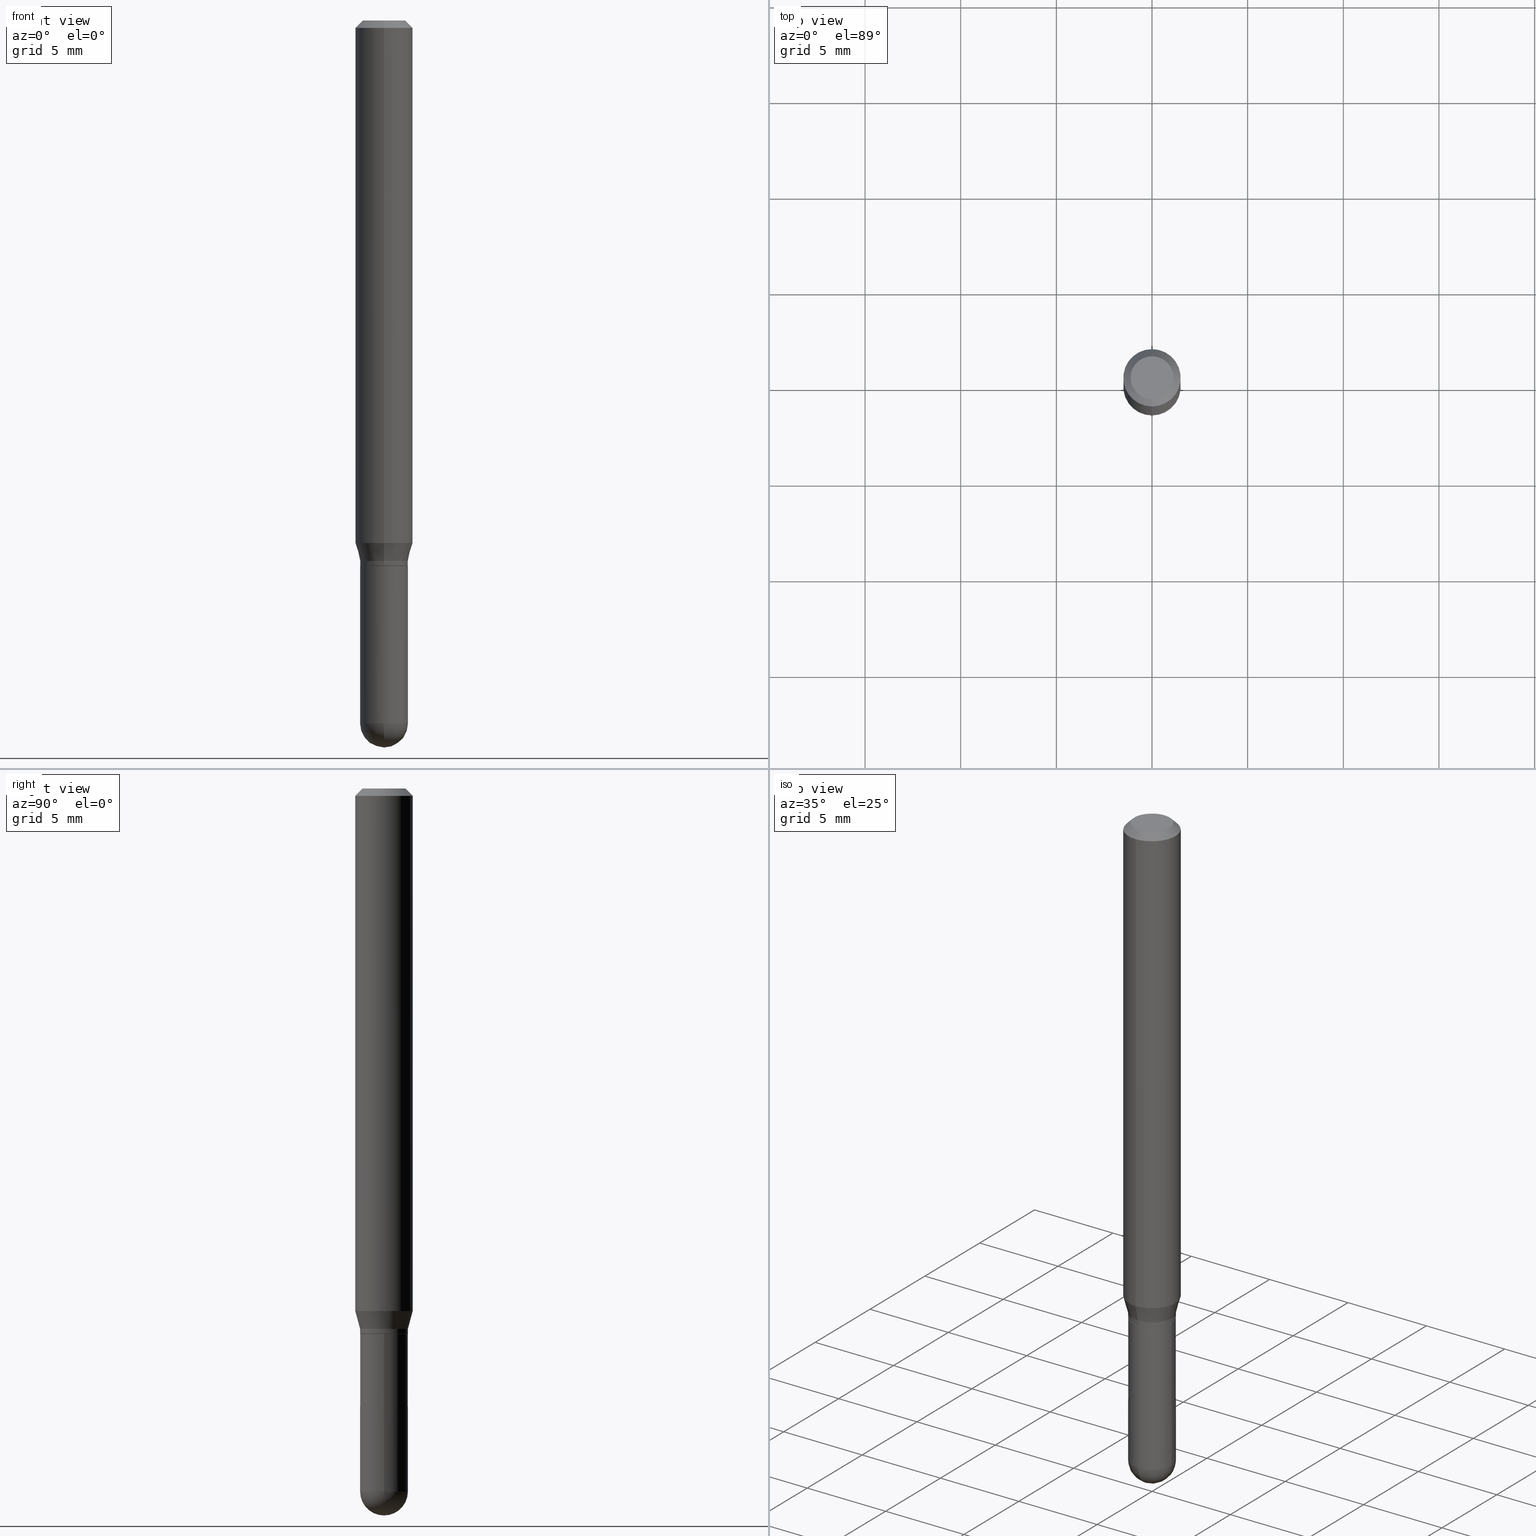
[diagram: canonical four-view strip — front | top / right | iso, engineering-drawing reading convention]
A machine part, canonical four-view strip (front | top / right | iso — engineering-drawing reading convention). The complete STEP part file that produces these views, byte-faithful:
ISO-10303-21;
HEADER;
FILE_DESCRIPTION (( 'STEP AP203' ),
    '1' );
FILE_NAME ('48823.STEP',
    '2024-03-08T13:24:16',
    ( '' ),
    ( '' ),
    'SwSTEP 2.0',
    'SolidWorks 2023',
    '' );
FILE_SCHEMA (( 'CONFIG_CONTROL_DESIGN' ));
ENDSEC;

DATA;
#1 = CARTESIAN_POINT ( 'NONE',  ( -3.435617637421375549E-16, -0.04920000000000401136, -1.121599999999999708 ) ) ;
#2 = EDGE_CURVE ( 'NONE', #77, #115, #340, .T. ) ;
#3 = AXIS2_PLACEMENT_3D ( 'NONE', #360, #393, #112 ) ;
#4 = DIMENSIONAL_EXPONENTS ( 1.000000000000000000, 0.000000000000000000, 0.000000000000000000, 0.000000000000000000, 0.000000000000000000, 0.000000000000000000, 0.000000000000000000 ) ;
#5 = AXIS2_PLACEMENT_3D ( 'NONE', #15, #334, #19 ) ;
#6 = AXIS2_PLACEMENT_3D ( 'NONE', #105, #38, #509 ) ;
#7 = EDGE_CURVE ( 'NONE', #133, #28, #425, .T. ) ;
#8 = PERSON_AND_ORGANIZATION_ROLE ( 'classification_officer' ) ;
#9 = ADVANCED_FACE ( 'NONE', ( #453 ), #390, .T. ) ;
#10 = ADVANCED_BREP_SHAPE_REPRESENTATION ( '48823', ( #212, #200, #176 ), #151 ) ;
#11 = EDGE_LOOP ( 'NONE', ( #271, #44 ) ) ;
#12 = DIRECTION ( 'NONE',  ( -2.445468806185136597E-29, 3.491481338843145583E-15, 1.000000000000000000 ) ) ;
#13 = COORDINATED_UNIVERSAL_TIME_OFFSET ( 5, 0, .BEHIND. ) ;
#14 = EDGE_CURVE ( 'NONE', #438, #177, #209, .T. ) ;
#15 = CARTESIAN_POINT ( 'NONE',  ( 0.000000000000000000, 0.000000000000000000, 0.000000000000000000 ) ) ;
#16 = CIRCLE ( 'NONE', #159, 0.05904999999999999832 ) ;
#17 = VECTOR ( 'NONE', #59, 39.37007874015748143 ) ;
#18 = CYLINDRICAL_SURFACE ( 'NONE', #491, 0.05905000000000000526 ) ;
#19 = DIRECTION ( 'NONE',  ( -6.982962677686265922E-15, -1.000000000000000000, 3.492283521223846478E-15 ) ) ;
#20 = EDGE_CURVE ( 'NONE', #327, #224, #303, .T. ) ;
#21 = DIRECTION ( 'NONE',  ( -2.444908645222623477E-29, 3.492283521223846478E-15, 1.000000000000000000 ) ) ;
#22 = DIRECTION ( 'NONE',  ( 1.000000000000000000, -7.105427357601001070E-15, 4.926315508542082329E-29 ) ) ;
#23 = APPLICATION_PROTOCOL_DEFINITION ( 'international standard', 'config_control_design', 1994, #286 ) ;
#24 = CIRCLE ( 'NONE', #394, 0.04920000000000000068 ) ;
#25 = DIRECTION ( 'NONE',  ( -6.982962677686265922E-15, -1.000000000000000000, 3.505890868245044514E-15 ) ) ;
#26 = EDGE_CURVE ( 'NONE', #361, #177, #175, .T. ) ;
#27 = ORIENTED_EDGE ( 'NONE', *, *, #301, .F. ) ;
#28 = VERTEX_POINT ( 'NONE', #111 ) ;
#29 = VERTEX_POINT ( 'NONE', #145 ) ;
#30 = CALENDAR_DATE ( 2024, 8, 3 ) ;
#31 = ORIENTED_EDGE ( 'NONE', *, *, #99, .T. ) ;
#32 = DIRECTION ( 'NONE',  ( -1.807323732225326984E-15, -0.2588190451025177419, 0.9659258262890690894 ) ) ;
#33 = DIRECTION ( 'NONE',  ( 6.982962677686265922E-15, 1.000000000000000000, -3.505890868245044514E-15 ) ) ;
#34 = CONICAL_SURFACE ( 'NONE', #85, 0.04920000000000020191, 0.2617993877991497964 ) ;
#35 = CARTESIAN_POINT ( 'NONE',  ( 4.195754854663652789E-16, 0.05904999999999623744, -1.075339299545447380 ) ) ;
#36 = PERSON_AND_ORGANIZATION_ROLE ( 'creator' ) ;
#37 = DIRECTION ( 'NONE',  ( -6.982962677686265922E-15, -1.000000000000000000, 4.626330217890369336E-15 ) ) ;
#38 = DIRECTION ( 'NONE',  ( -2.444908645222623477E-29, 3.492283521223846478E-15, 1.000000000000000000 ) ) ;
#39 = CARTESIAN_POINT ( 'NONE',  ( 0.000000000000000000, 0.000000000000000000, 0.000000000000000000 ) ) ;
#40 = CYLINDRICAL_SURFACE ( 'NONE', #307, 0.04920000000000013946 ) ;
#41 = SECURITY_CLASSIFICATION ( '', '', #400 ) ;
#42 = DIRECTION ( 'NONE',  ( -2.445468806185136597E-29, 3.491481338843145583E-15, 1.000000000000000000 ) ) ;
#43 = CC_DESIGN_PERSON_AND_ORGANIZATION_ASSIGNMENT ( #192, #8, ( #41 ) ) ;
#44 = ORIENTED_EDGE ( 'NONE', *, *, #323, .T. ) ;
#45 = DIRECTION ( 'NONE',  ( -6.982962677686265922E-15, -1.000000000000000000, 5.552536572488332275E-15 ) ) ;
#46 = LOCAL_TIME ( 8, 24, 16.00000000000000000, #184 ) ;
#47 = ORIENTED_EDGE ( 'NONE', *, *, #2, .T. ) ;
#48 = AXIS2_PLACEMENT_3D ( 'NONE', #132, #293, #355 ) ;
#49 = DIRECTION ( 'NONE',  ( -6.982962677686266711E-15, -1.000000000000000000, 2.804772067417108113E-15 ) ) ;
#50 = FACE_OUTER_BOUND ( 'NONE', #345, .T. ) ;
#51 = CYLINDRICAL_SURFACE ( 'NONE', #199, 0.04920000000000013946 ) ;
#52 = SPHERICAL_SURFACE ( 'NONE', #396, 0.04920000000000007007 ) ;
#53 = AXIS2_PLACEMENT_3D ( 'NONE', #241, #447, #168 ) ;
#54 = DIRECTION ( 'NONE',  ( 6.982962677686265922E-15, 1.000000000000000000, -3.505890868245044514E-15 ) ) ;
#55 = CARTESIAN_POINT ( 'NONE',  ( 3.538348815669273817E-29, -5.051824349172146609E-15, -1.446899999999999853 ) ) ;
#56 = CARTESIAN_POINT ( 'NONE',  ( -4.123439461173478031E-16, -0.05905000000000376614, -1.075339299545447158 ) ) ;
#57 = CARTESIAN_POINT ( 'NONE',  ( -3.536586717851222711E-16, -0.04405000000000000582, 3.540390976085822120E-16 ) ) ;
#58 = ORIENTED_EDGE ( 'NONE', *, *, #225, .T. ) ;
#59 = DIRECTION ( 'NONE',  ( 1.839019923739597160E-15, 0.2588190451025245142, 0.9659258262890673130 ) ) ;
#60 = APPLICATION_PROTOCOL_DEFINITION ( 'international standard', 'config_control_design', 1994, #88 ) ;
#61 = AXIS2_PLACEMENT_3D ( 'NONE', #304, #65, #72 ) ;
#62 = PLANE ( 'NONE',  #485 ) ;
#63 = AXIS2_PLACEMENT_3D ( 'NONE', #382, #22, #249 ) ;
#64 = ORIENTED_EDGE ( 'NONE', *, *, #20, .F. ) ;
#65 = DIRECTION ( 'NONE',  ( -2.444908645222623477E-29, 3.492283521223846478E-15, 1.000000000000000000 ) ) ;
#66 = ORIENTED_EDGE ( 'NONE', *, *, #156, .F. ) ;
#67 = ORIENTED_EDGE ( 'NONE', *, *, #14, .T. ) ;
#68 = DIRECTION ( 'NONE',  ( -2.444908645222623477E-29, 3.492283521223846478E-15, 1.000000000000000000 ) ) ;
#69 = ORIENTED_EDGE ( 'NONE', *, *, #257, .T. ) ;
#70 = LOCAL_TIME ( 8, 24, 16.00000000000000000, #507 ) ;
#71 = CIRCLE ( 'NONE', #131, 0.04920000000000000068 ) ;
#72 = DIRECTION ( 'NONE',  ( -6.982962677686265133E-15, -1.000000000000000000, 3.492283521223846084E-15 ) ) ;
#73 = EDGE_CURVE ( 'NONE', #115, #28, #147, .T. ) ;
#74 = ORIENTED_EDGE ( 'NONE', *, *, #280, .T. ) ;
#75 = CARTESIAN_POINT ( 'NONE',  ( 2.742209536481694084E-29, -3.916945197404665719E-15, -1.121599999999999930 ) ) ;
#76 = DIRECTION ( 'NONE',  ( -6.982962677686265922E-15, -1.000000000000000000, 0.000000000000000000 ) ) ;
#77 = VERTEX_POINT ( 'NONE', #312 ) ;
#78 = FACE_OUTER_BOUND ( 'NONE', #217, .T. ) ;
#79 = EDGE_CURVE ( 'NONE', #361, #237, #281, .T. ) ;
#80 = EDGE_CURVE ( 'NONE', #28, #371, #142, .T. ) ;
#81 = ORIENTED_EDGE ( 'NONE', *, *, #455, .T. ) ;
#82 = VERTEX_POINT ( 'NONE', #381 ) ;
#83 = AXIS2_PLACEMENT_3D ( 'NONE', #114, #411, #76 ) ;
#84 = ORIENTED_EDGE ( 'NONE', *, *, #323, .F. ) ;
#85 = AXIS2_PLACEMENT_3D ( 'NONE', #185, #467, #266 ) ;
#86 = AXIS2_PLACEMENT_3D ( 'NONE', #395, #188, #316 ) ;
#87 = LINE ( 'NONE', #169, #512 ) ;
#88 = APPLICATION_CONTEXT ( 'configuration controlled 3d designs of mechanical parts and assemblies' ) ;
#89 = FACE_OUTER_BOUND ( 'NONE', #482, .T. ) ;
#90 = FACE_OUTER_BOUND ( 'NONE', #465, .T. ) ;
#91 = CARTESIAN_POINT ( 'NONE',  ( -3.400702824032937589E-16, -0.04870000000000392071, -1.122099999999999653 ) ) ;
#92 = FACE_OUTER_BOUND ( 'NONE', #288, .T. ) ;
#93 = PERSON_AND_ORGANIZATION ( #121, #484 ) ;
#94 = CARTESIAN_POINT ( 'NONE',  ( 0.000000000000000000, 0.000000000000000000, 0.000000000000000000 ) ) ;
#95 = DIRECTION ( 'NONE',  ( 2.438088387897960049E-29, -3.491481338843145188E-15, -1.000000000000000000 ) ) ;
#96 = ADVANCED_FACE ( 'NONE', ( #97 ), #34, .T. ) ;
#97 = FACE_OUTER_BOUND ( 'NONE', #103, .T. ) ;
#98 = DATE_AND_TIME ( #305, #299 ) ;
#99 = EDGE_CURVE ( 'NONE', #82, #285, #331, .T. ) ;
#100 = CC_DESIGN_APPROVAL ( #470, ( #41 ) ) ;
#101 = ORIENTED_EDGE ( 'NONE', *, *, #14, .F. ) ;
#102 = DIRECTION ( 'NONE',  ( 2.444908645222623477E-29, -3.492283521223846478E-15, -1.000000000000000000 ) ) ;
#103 = EDGE_LOOP ( 'NONE', ( #385, #279, #179, #235 ) ) ;
#104 = CONICAL_SURFACE ( 'NONE', #6, 0.04920000000000020191, 0.2617993877991497964 ) ;
#105 = CARTESIAN_POINT ( 'NONE',  ( 2.718982904352079591E-29, -3.883768503953039456E-15, -1.112099999999999866 ) ) ;
#106 = ORIENTED_EDGE ( 'NONE', *, *, #401, .F. ) ;
#107 = CARTESIAN_POINT ( 'NONE',  ( -4.123439461173740327E-16, -0.05905000000000000526, 2.062193419282681496E-16 ) ) ;
#108 = DIRECTION ( 'NONE',  ( -1.000000000000000000, 6.982962677686265922E-15, -4.876176775795935793E-29 ) ) ;
#109 = DIRECTION ( 'NONE',  ( -6.982962677686265922E-15, -1.000000000000000000, 3.492283521223846478E-15 ) ) ;
#110 = APPROVAL_ROLE ( '' ) ;
#111 = CARTESIAN_POINT ( 'NONE',  ( -3.435617637421385410E-16, -0.04920000000000408769, -1.112099999999999644 ) ) ;
#112 = DIRECTION ( 'NONE',  ( -6.982962677686266711E-15, -1.000000000000000000, 2.804772067417108113E-15 ) ) ;
#113 = ADVANCED_FACE ( 'NONE', ( #423 ), #62, .F. ) ;
#114 = CARTESIAN_POINT ( 'NONE',  ( 3.534141397526511158E-29, -5.057849611423951529E-15, -1.446899999999999853 ) ) ;
#115 = VERTEX_POINT ( 'NONE', #1 ) ;
#116 = CALENDAR_DATE ( 2024, 8, 3 ) ;
#117 = ORIENTED_EDGE ( 'NONE', *, *, #419, .F. ) ;
#118 = CONICAL_SURFACE ( 'NONE', #3, 0.04870000000000000023, 0.7853981633974739252 ) ;
#119 = CIRCLE ( 'NONE', #63, 0.04920000000000007007 ) ;
#120 = DIRECTION ( 'NONE',  ( -6.982962677686265133E-15, -1.000000000000000000, 3.492283521223846478E-15 ) ) ;
#121 = PERSON ( 'UNSPECIFIED', 'UNSPECIFIED', 'UNSPECIFIED', ('UNSPECIFIED'), ('UNSPECIFIED'), ('UNSPECIFIED') ) ;
#122 = DIRECTION ( 'NONE',  ( -6.982962677686265133E-15, -1.000000000000000000, 3.492283521223846478E-15 ) ) ;
#123 = EDGE_LOOP ( 'NONE', ( #362, #442 ) ) ;
#124 = EDGE_CURVE ( 'NONE', #28, #133, #153, .T. ) ;
#125 = ORIENTED_EDGE ( 'NONE', *, *, #280, .F. ) ;
#126 = ORIENTED_EDGE ( 'NONE', *, *, #213, .T. ) ;
#127 = ADVANCED_FACE ( 'NONE', ( #275 ), #104, .T. ) ;
#128 = ORIENTED_EDGE ( 'NONE', *, *, #227, .T. ) ;
#129 = EDGE_CURVE ( 'NONE', #77, #133, #479, .T. ) ;
#130 = FACE_OUTER_BOUND ( 'NONE', #11, .T. ) ;
#131 = AXIS2_PLACEMENT_3D ( 'NONE', #487, #302, #294 ) ;
#132 = CARTESIAN_POINT ( 'NONE',  ( 2.718982904352079591E-29, -3.883768503953039456E-15, -1.112099999999999866 ) ) ;
#133 = VERTEX_POINT ( 'NONE', #414 ) ;
#134 = CARTESIAN_POINT ( 'NONE',  ( 3.495870259940048443E-16, 0.04919999999999498386, -1.446900000000000075 ) ) ;
#135 = CARTESIAN_POINT ( 'NONE',  ( 3.667362967833886328E-31, -5.238425281835698892E-17, -0.01499999999999979995 ) ) ;
#136 = PRODUCT_RELATED_PRODUCT_CATEGORY ( 'detail', '', ( #364 ) ) ;
#137 = APPROVAL_PERSON_ORGANIZATION ( #171, #470, #160 ) ;
#138 = CARTESIAN_POINT ( 'NONE',  ( -0.04920000000000000068, -4.135220753750050718E-15, -1.122099999999999875 ) ) ;
#139 = AXIS2_PLACEMENT_3D ( 'NONE', #135, #244, #448 ) ;
#140 = CARTESIAN_POINT ( 'NONE',  ( 2.718982904352079591E-29, -3.883768503953039456E-15, -1.112099999999999866 ) ) ;
#141 = LOCAL_TIME ( 8, 24, 16.00000000000000000, #384 ) ;
#142 = LINE ( 'NONE', #460, #219 ) ;
#143 = CARTESIAN_POINT ( 'NONE',  ( -4.894805111866261893E-45, 6.991691597628703667E-31, 2.002040084986717477E-16 ) ) ;
#144 = PERSON_AND_ORGANIZATION ( #121, #484 ) ;
#145 = CARTESIAN_POINT ( 'NONE',  ( 0.04920000000000000068, -4.261352974058057450E-15, -1.122099999999999875 ) ) ;
#146 = CIRCLE ( 'NONE', #161, 0.04920000000000000068 ) ;
#147 = LINE ( 'NONE', #310, #376 ) ;
#148 = FACE_OUTER_BOUND ( 'NONE', #475, .T. ) ;
#149 = CARTESIAN_POINT ( 'NONE',  ( 3.538348815669273817E-29, -5.051824349172146609E-15, -1.446899999999999853 ) ) ;
#150 = PERSON_AND_ORGANIZATION_ROLE ( 'creator' ) ;
#151 =( GEOMETRIC_REPRESENTATION_CONTEXT ( 3 ) GLOBAL_UNCERTAINTY_ASSIGNED_CONTEXT ( ( #468 ) ) GLOBAL_UNIT_ASSIGNED_CONTEXT ( ( #287, #240, #489 ) ) REPRESENTATION_CONTEXT ( 'NONE', 'WORKASPACE' ) );
#152 = DIRECTION ( 'NONE',  ( -2.444908645222623477E-29, 3.492283521223846478E-15, 1.000000000000000000 ) ) ;
#153 = CIRCLE ( 'NONE', #48, 0.04920000000000020191 ) ;
#154 = DIRECTION ( 'NONE',  ( -2.444908645222623477E-29, 3.492283521223846478E-15, 1.000000000000000000 ) ) ;
#155 = FACE_OUTER_BOUND ( 'NONE', #433, .T. ) ;
#156 = EDGE_CURVE ( 'NONE', #133, #427, #457, .T. ) ;
#157 = ORIENTED_EDGE ( 'NONE', *, *, #297, .T. ) ;
#158 = ORIENTED_EDGE ( 'NONE', *, *, #242, .T. ) ;
#159 = AXIS2_PLACEMENT_3D ( 'NONE', #232, #459, #37 ) ;
#160 = APPROVAL_ROLE ( '' ) ;
#161 = AXIS2_PLACEMENT_3D ( 'NONE', #372, #12, #164 ) ;
#162 = ADVANCED_FACE ( 'NONE', ( #130 ), #243, .F. ) ;
#163 = VERTEX_POINT ( 'NONE', #336 ) ;
#164 = DIRECTION ( 'NONE',  ( 1.000000000000000000, -6.982962677686261977E-15, 0.000000000000000000 ) ) ;
#165 = CARTESIAN_POINT ( 'NONE',  ( 3.495870259939978432E-16, 0.04919999999999632306, -1.112100000000000088 ) ) ;
#166 = AXIS2_PLACEMENT_3D ( 'NONE', #143, #261, #392 ) ;
#167 = SPHERICAL_SURFACE ( 'NONE', #407, 0.04920000000000007007 ) ;
#168 = DIRECTION ( 'NONE',  ( 6.982962677686265922E-15, 1.000000000000000000, -3.492283521223846084E-15 ) ) ;
#169 = CARTESIAN_POINT ( 'NONE',  ( 0.04920000000000000068, -3.435617637421643269E-16, 2.399078973691600472E-30 ) ) ;
#170 = DIRECTION ( 'NONE',  ( 1.000000000000000000, -6.982962677686261977E-15, 0.000000000000000000 ) ) ;
#171 = PERSON_AND_ORGANIZATION ( #121, #484 ) ;
#172 = DIRECTION ( 'NONE',  ( 1.000000000000000000, -6.982962677686265922E-15, 4.883557194083112340E-29 ) ) ;
#173 = DIRECTION ( 'NONE',  ( 0.000000000000000000, 0.000000000000000000, 1.000000000000000000 ) ) ;
#174 = AXIS2_PLACEMENT_3D ( 'NONE', #140, #300, #387 ) ;
#175 = LINE ( 'NONE', #349, #320 ) ;
#176 = AXIS2_PLACEMENT_3D ( 'NONE', #337, #173, #461 ) ;
#177 = VERTEX_POINT ( 'NONE', #292 ) ;
#178 = EDGE_LOOP ( 'NONE', ( #201, #231, #443, #27 ) ) ;
#179 = ORIENTED_EDGE ( 'NONE', *, *, #478, .F. ) ;
#180 = ORIENTED_EDGE ( 'NONE', *, *, #227, .F. ) ;
#181 = DATE_AND_TIME ( #30, #46 ) ;
#182 = ORIENTED_EDGE ( 'NONE', *, *, #406, .T. ) ;
#183 = DIRECTION ( 'NONE',  ( -6.982962677686265133E-15, -1.000000000000000000, 2.776268286244166532E-15 ) ) ;
#184 = COORDINATED_UNIVERSAL_TIME_OFFSET ( 5, 0, .BEHIND. ) ;
#185 = CARTESIAN_POINT ( 'NONE',  ( 2.718982904352079591E-29, -3.883768503953039456E-15, -1.112099999999999866 ) ) ;
#186 = DIRECTION ( 'NONE',  ( -2.445468806185136597E-29, 3.491481338843145583E-15, 1.000000000000000000 ) ) ;
#187 = AXIS2_PLACEMENT_3D ( 'NONE', #500, #21, #25 ) ;
#188 = DIRECTION ( 'NONE',  ( -2.444908645222623477E-29, 3.492283521223846478E-15, 1.000000000000000000 ) ) ;
#189 = DATE_AND_TIME ( #116, #70 ) ;
#190 = CARTESIAN_POINT ( 'NONE',  ( 2.629106350006304297E-29, -3.755389715526958811E-15, -1.075339299545447158 ) ) ;
#191 = APPROVAL_STATUS ( 'not_yet_approved' ) ;
#192 = PERSON_AND_ORGANIZATION ( #121, #484 ) ;
#193 = CLOSED_SHELL ( 'NONE', ( #432, #510, #113, #196, #9 ) ) ;
#194 = ORIENTED_EDGE ( 'NONE', *, *, #129, .T. ) ;
#195 = EDGE_LOOP ( 'NONE', ( #335, #128, #260, #471 ) ) ;
#196 = ADVANCED_FACE ( 'NONE', ( #92 ), #52, .T. ) ;
#197 = CONICAL_SURFACE ( 'NONE', #86, 0.04870000000000000023, 0.7853981633974739252 ) ;
#198 = CIRCLE ( 'NONE', #61, 0.04405000000000000582 ) ;
#199 = AXIS2_PLACEMENT_3D ( 'NONE', #39, #154, #122 ) ;
#200 = MANIFOLD_SOLID_BREP ( 'Body-Move/Copy2[2]', #245 ) ;
#201 = ORIENTED_EDGE ( 'NONE', *, *, #455, .F. ) ;
#202 = DIRECTION ( 'NONE',  ( -2.444908645222623477E-29, 3.492283521223846084E-15, 1.000000000000000000 ) ) ;
#203 = ADVANCED_FACE ( 'NONE', ( #488 ), #374, .T. ) ;
#204 = ORIENTED_EDGE ( 'NONE', *, *, #439, .F. ) ;
#205 = CARTESIAN_POINT ( 'NONE',  ( 3.667362967833886328E-31, -5.238425281835698892E-17, -0.01499999999999979995 ) ) ;
#206 = PERSON_AND_ORGANIZATION ( #121, #484 ) ;
#207 = CC_DESIGN_DATE_AND_TIME_ASSIGNMENT ( #248, #215, ( #41 ) ) ;
#208 = LINE ( 'NONE', #492, #441 ) ;
#209 = CIRCLE ( 'NONE', #187, 0.05905000000000001914 ) ;
#210 = CARTESIAN_POINT ( 'NONE',  ( 3.534141397526511158E-29, -5.057849611423951529E-15, -1.446899999999999853 ) ) ;
#211 = DIRECTION ( 'NONE',  ( -2.445468806185136597E-29, 3.491481338843145583E-15, 1.000000000000000000 ) ) ;
#212 = MANIFOLD_SOLID_BREP ( 'Body-Move/Copy2[1]', #193 ) ;
#213 = EDGE_CURVE ( 'NONE', #163, #82, #146, .T. ) ;
#214 = ORIENTED_EDGE ( 'NONE', *, *, #225, .F. ) ;
#215 = DATE_TIME_ROLE ( 'classification_date' ) ;
#216 = SHAPE_DEFINITION_REPRESENTATION ( #373, #10 ) ;
#217 = EDGE_LOOP ( 'NONE', ( #182, #194, #326, #220 ) ) ;
#218 = PERSON_AND_ORGANIZATION_ROLE ( 'design_owner' ) ;
#219 = VECTOR ( 'NONE', #32, 39.37007874015748143 ) ;
#220 = ORIENTED_EDGE ( 'NONE', *, *, #73, .F. ) ;
#221 = ORIENTED_EDGE ( 'NONE', *, *, #474, .F. ) ;
#222 = ORIENTED_EDGE ( 'NONE', *, *, #409, .F. ) ;
#223 = DIRECTION ( 'NONE',  ( -2.445468806185136597E-29, 3.491481338843145583E-15, 1.000000000000000000 ) ) ;
#224 = VERTEX_POINT ( 'NONE', #138 ) ;
#225 = EDGE_CURVE ( 'NONE', #82, #29, #87, .T. ) ;
#226 = PRODUCT_DEFINITION_FORMATION_WITH_SPECIFIED_SOURCE ( 'ANY', '', #364, .NOT_KNOWN. ) ;
#227 = EDGE_CURVE ( 'NONE', #309, #282, #451, .T. ) ;
#228 = DIRECTION ( 'NONE',  ( -2.444908645222623477E-29, 3.492283521223846084E-15, 1.000000000000000000 ) ) ;
#229 = CARTESIAN_POINT ( 'NONE',  ( 2.743431990804305521E-29, -3.918691339165277420E-15, -1.122099999999999875 ) ) ;
#230 = PERSON_AND_ORGANIZATION_ROLE ( 'design_supplier' ) ;
#231 = ORIENTED_EDGE ( 'NONE', *, *, #401, .T. ) ;
#232 = CARTESIAN_POINT ( 'NONE',  ( 2.629106350006304297E-29, -3.755389715526958811E-15, -1.075339299545447158 ) ) ;
#233 = AXIS2_PLACEMENT_3D ( 'NONE', #149, #436, #357 ) ;
#234 = AXIS2_PLACEMENT_3D ( 'NONE', #247, #383, #250 ) ;
#235 = ORIENTED_EDGE ( 'NONE', *, *, #80, .F. ) ;
#236 = DIRECTION ( 'NONE',  ( 1.000000000000000000, -6.982962677686265922E-15, 4.883557194083112340E-29 ) ) ;
#237 = VERTEX_POINT ( 'NONE', #57 ) ;
#238 = CC_DESIGN_PERSON_AND_ORGANIZATION_ASSIGNMENT ( #508, #150, ( #226 ) ) ;
#239 = CIRCLE ( 'NONE', #370, 0.04920000000000006313 ) ;
#240 =( NAMED_UNIT ( * ) PLANE_ANGLE_UNIT ( ) SI_UNIT ( $, .RADIAN. ) );
#241 = CARTESIAN_POINT ( 'NONE',  ( 3.075995059520800222E-16, 0.04405000000000000582, -5.373308486057459653E-17 ) ) ;
#242 = EDGE_CURVE ( 'NONE', #440, #285, #119, .T. ) ;
#243 = PLANE ( 'NONE',  #53 ) ;
#244 = DIRECTION ( 'NONE',  ( -2.444908645222623477E-29, 3.492283521223846478E-15, 1.000000000000000000 ) ) ;
#245 = CLOSED_SHELL ( 'NONE', ( #388, #328, #503, #315, #96, #127, #203, #263, #162, #377, #495, #481 ) ) ;
#246 = DIRECTION ( 'NONE',  ( -2.444908645222623477E-29, 3.492283521223846478E-15, 1.000000000000000000 ) ) ;
#247 = CARTESIAN_POINT ( 'NONE',  ( 2.742209536481694084E-29, -3.916945197404665719E-15, -1.121599999999999930 ) ) ;
#248 = DATE_AND_TIME ( #252, #141 ) ;
#249 = DIRECTION ( 'NONE',  ( 7.105427357601001070E-15, 1.000000000000000000, 0.000000000000000000 ) ) ;
#250 = DIRECTION ( 'NONE',  ( -6.982962677686265133E-15, -1.000000000000000000, 2.776268286244166532E-15 ) ) ;
#251 = AXIS2_PLACEMENT_3D ( 'NONE', #472, #186, #352 ) ;
#252 = CALENDAR_DATE ( 2024, 8, 3 ) ;
#253 = APPROVAL_DATE_TIME ( #98, #329 ) ;
#254 = ORIENTED_EDGE ( 'NONE', *, *, #129, .F. ) ;
#255 = AXIS2_PLACEMENT_3D ( 'NONE', #55, #211, #170 ) ;
#256 = DIRECTION ( 'NONE',  ( 1.000000000000000000, -6.982962677686266711E-15, 4.876176775795935793E-29 ) ) ;
#257 = EDGE_CURVE ( 'NONE', #309, #77, #333, .T. ) ;
#258 = DESIGN_CONTEXT ( 'detailed design', #286, 'design' ) ;
#259 = CALENDAR_DATE ( 2024, 8, 3 ) ;
#260 = ORIENTED_EDGE ( 'NONE', *, *, #439, .T. ) ;
#261 = DIRECTION ( 'NONE',  ( -2.444908645222623477E-29, 3.492283521223846478E-15, 1.000000000000000000 ) ) ;
#262 = CARTESIAN_POINT ( 'NONE',  ( -4.123439461173737369E-16, -0.05905000000000006771, -0.01499999999999959178 ) ) ;
#263 = ADVANCED_FACE ( 'NONE', ( #50 ), #351, .T. ) ;
#264 = CARTESIAN_POINT ( 'NONE',  ( 2.743431990804305521E-29, -3.918691339165277420E-15, -1.122099999999999875 ) ) ;
#265 = CARTESIAN_POINT ( 'NONE',  ( -0.04920000000000000068, -4.135220753750050718E-15, -1.446899999999999853 ) ) ;
#266 = DIRECTION ( 'NONE',  ( -6.982962677686265922E-15, -1.000000000000000000, 2.776268286244158643E-15 ) ) ;
#267 = DIRECTION ( 'NONE',  ( -2.444908645222623477E-29, 3.492283521223846478E-15, 1.000000000000000000 ) ) ;
#268 = DATE_AND_TIME ( #259, #431 ) ;
#269 = ORIENTED_EDGE ( 'NONE', *, *, #79, .F. ) ;
#270 = CC_DESIGN_APPROVAL ( #329, ( #284 ) ) ;
#271 = ORIENTED_EDGE ( 'NONE', *, *, #79, .T. ) ;
#272 = VECTOR ( 'NONE', #462, 39.37007874015748143 ) ;
#273 = CARTESIAN_POINT ( 'NONE',  ( 3.652354753719438961E-29, -5.232643124420936646E-15, -1.496099999999999985 ) ) ;
#274 = AXIS2_PLACEMENT_3D ( 'NONE', #229, #399, #49 ) ;
#275 = FACE_OUTER_BOUND ( 'NONE', #338, .T. ) ;
#276 = ORIENTED_EDGE ( 'NONE', *, *, #26, .T. ) ;
#277 = CC_DESIGN_DATE_AND_TIME_ASSIGNMENT ( #181, #353, ( #284 ) ) ;
#278 = ORIENTED_EDGE ( 'NONE', *, *, #478, .T. ) ;
#279 = ORIENTED_EDGE ( 'NONE', *, *, #156, .T. ) ;
#280 = EDGE_CURVE ( 'NONE', #237, #438, #208, .T. ) ;
#281 = CIRCLE ( 'NONE', #166, 0.04405000000000000582 ) ;
#282 = VERTEX_POINT ( 'NONE', #91 ) ;
#283 = ORIENTED_EDGE ( 'NONE', *, *, #379, .T. ) ;
#284 = PRODUCT_DEFINITION ( 'UNKNOWN', '', #226, #258 ) ;
#285 = VERTEX_POINT ( 'NONE', #134 ) ;
#286 = APPLICATION_CONTEXT ( 'configuration controlled 3d designs of mechanical parts and assemblies' ) ;
#287 =( CONVERSION_BASED_UNIT ( 'INCH', #444 ) LENGTH_UNIT ( ) NAMED_UNIT ( #4 ) );
#288 = EDGE_LOOP ( 'NONE', ( #454, #283, #222, #504 ) ) ;
#289 = APPROVAL_PERSON_ORGANIZATION ( #144, #449, #110 ) ;
#290 = AXIS2_PLACEMENT_3D ( 'NONE', #452, #246, #418 ) ;
#291 = CARTESIAN_POINT ( 'NONE',  ( 3.599717260347272986E-16, 0.04405000000000000582, 4.636891938876127733E-17 ) ) ;
#292 = CARTESIAN_POINT ( 'NONE',  ( 4.195754854663657226E-16, 0.05904999999999996363, -0.01500000000000000638 ) ) ;
#293 = DIRECTION ( 'NONE',  ( -2.444908645222623477E-29, 3.492283521223846478E-15, 1.000000000000000000 ) ) ;
#294 = DIRECTION ( 'NONE',  ( 1.000000000000000000, -6.982962677686261977E-15, 0.000000000000000000 ) ) ;
#295 = CARTESIAN_POINT ( 'NONE',  ( 0.000000000000000000, 0.000000000000000000, 0.000000000000000000 ) ) ;
#296 = ORIENTED_EDGE ( 'NONE', *, *, #7, .T. ) ;
#297 = EDGE_CURVE ( 'NONE', #285, #327, #71, .T. ) ;
#298 = DIRECTION ( 'NONE',  ( -2.445468806185136877E-29, 3.491481338843145188E-15, 1.000000000000000000 ) ) ;
#299 = LOCAL_TIME ( 8, 24, 16.00000000000000000, #497 ) ;
#300 = DIRECTION ( 'NONE',  ( -2.444908645222623477E-29, 3.492283521223846478E-15, 1.000000000000000000 ) ) ;
#301 = EDGE_CURVE ( 'NONE', #177, #438, #369, .T. ) ;
#302 = DIRECTION ( 'NONE',  ( -2.445468806185136597E-29, 3.491481338843145583E-15, 1.000000000000000000 ) ) ;
#303 = LINE ( 'NONE', #428, #272 ) ;
#304 = CARTESIAN_POINT ( 'NONE',  ( -4.894805111866261893E-45, 6.991691597628703667E-31, 2.002040084986717477E-16 ) ) ;
#305 = CALENDAR_DATE ( 2024, 8, 3 ) ;
#306 = ORIENTED_EDGE ( 'NONE', *, *, #344, .F. ) ;
#307 = AXIS2_PLACEMENT_3D ( 'NONE', #477, #68, #120 ) ;
#308 = APPROVAL_STATUS ( 'not_yet_approved' ) ;
#309 = VERTEX_POINT ( 'NONE', #417 ) ;
#310 = CARTESIAN_POINT ( 'NONE',  ( -3.435617637421652144E-16, -0.04920000000000013946, 1.718203492442137256E-16 ) ) ;
#311 = FACE_OUTER_BOUND ( 'NONE', #348, .T. ) ;
#312 = CARTESIAN_POINT ( 'NONE',  ( 3.495870259939968571E-16, 0.04919999999999610796, -1.121599999999999930 ) ) ;
#313 = LINE ( 'NONE', #430, #463 ) ;
#314 = FACE_OUTER_BOUND ( 'NONE', #343, .T. ) ;
#315 = ADVANCED_FACE ( 'NONE', ( #90 ), #18, .T. ) ;
#316 = DIRECTION ( 'NONE',  ( -6.982962677686266711E-15, -1.000000000000000000, 2.804772067417108113E-15 ) ) ;
#317 = CIRCLE ( 'NONE', #83, 0.04920000000000007007 ) ;
#318 = PERSON_AND_ORGANIZATION ( #121, #484 ) ;
#319 = EDGE_LOOP ( 'NONE', ( #480, #69, #405, #204 ) ) ;
#320 = VECTOR ( 'NONE', #494, 39.37007874015748143 ) ;
#321 = DIRECTION ( 'NONE',  ( -6.982962677686265922E-15, -1.000000000000000000, 4.626330217890369336E-15 ) ) ;
#322 = VECTOR ( 'NONE', #434, 39.37007874015748143 ) ;
#323 = EDGE_CURVE ( 'NONE', #237, #361, #198, .T. ) ;
#324 = CARTESIAN_POINT ( 'NONE',  ( 3.667362967833886328E-31, -5.238425281835698892E-17, -0.01499999999999979995 ) ) ;
#325 = CARTESIAN_POINT ( 'NONE',  ( 3.534141397526511158E-29, -5.057849611423951529E-15, -1.446899999999999853 ) ) ;
#326 = ORIENTED_EDGE ( 'NONE', *, *, #124, .F. ) ;
#327 = VERTEX_POINT ( 'NONE', #265 ) ;
#328 = ADVANCED_FACE ( 'NONE', ( #429 ), #197, .T. ) ;
#329 = APPROVAL ( #493, 'UNSPECIFIED' ) ;
#330 = CIRCLE ( 'NONE', #233, 0.04920000000000000068 ) ;
#331 = CIRCLE ( 'NONE', #255, 0.04920000000000000068 ) ;
#332 = ORIENTED_EDGE ( 'NONE', *, *, #20, .T. ) ;
#333 = LINE ( 'NONE', #341, #359 ) ;
#334 = DIRECTION ( 'NONE',  ( -2.444908645222623477E-29, 3.492283521223846478E-15, 1.000000000000000000 ) ) ;
#335 = ORIENTED_EDGE ( 'NONE', *, *, #257, .F. ) ;
#336 = CARTESIAN_POINT ( 'NONE',  ( -3.435617637421291240E-16, -0.04920000000000508689, -1.446899999999999631 ) ) ;
#337 = CARTESIAN_POINT ( 'NONE',  ( 0.000000000000000000, 0.000000000000000000, 0.000000000000000000 ) ) ;
#338 = EDGE_LOOP ( 'NONE', ( #66, #296, #499, #106 ) ) ;
#339 = CIRCLE ( 'NONE', #274, 0.04870000000000000023 ) ;
#340 = CIRCLE ( 'NONE', #234, 0.04920000000000006313 ) ;
#341 = CARTESIAN_POINT ( 'NONE',  ( 3.460343123151961558E-16, 0.04869999999999607976, -1.122100000000000097 ) ) ;
#342 = CIRCLE ( 'NONE', #368, 0.04920000000000000068 ) ;
#343 = EDGE_LOOP ( 'NONE', ( #157, #332, #221, #214, #31 ) ) ;
#344 = EDGE_CURVE ( 'NONE', #224, #29, #24, .T. ) ;
#345 = EDGE_LOOP ( 'NONE', ( #125, #269, #276, #404 ) ) ;
#346 = ORIENTED_EDGE ( 'NONE', *, *, #213, .F. ) ;
#347 = EDGE_CURVE ( 'NONE', #282, #309, #339, .T. ) ;
#348 = EDGE_LOOP ( 'NONE', ( #254, #47, #496, #483 ) ) ;
#349 = CARTESIAN_POINT ( 'NONE',  ( 4.123439461173744764E-16, 0.05904999999999996363, -0.01500000000000000638 ) ) ;
#350 = CYLINDRICAL_SURFACE ( 'NONE', #251, 0.04920000000000000068 ) ;
#351 = CONICAL_SURFACE ( 'NONE', #415, 0.05905000000000001914, 0.7853981633974485010 ) ;
#352 = DIRECTION ( 'NONE',  ( 1.000000000000000000, -6.982962677686266711E-15, 4.876176775795935793E-29 ) ) ;
#353 = DATE_TIME_ROLE ( 'creation_date' ) ;
#354 = DIRECTION ( 'NONE',  ( -4.937700262164674260E-15, -0.7071067811865632269, 0.7071067811865319186 ) ) ;
#355 = DIRECTION ( 'NONE',  ( -6.982962677686265922E-15, -1.000000000000000000, 2.776268286244158643E-15 ) ) ;
#356 = APPROVAL_DATE_TIME ( #189, #449 ) ;
#357 = DIRECTION ( 'NONE',  ( 1.000000000000000000, -6.982962677686261977E-15, 0.000000000000000000 ) ) ;
#358 = AXIS2_PLACEMENT_3D ( 'NONE', #190, #152, #321 ) ;
#359 = VECTOR ( 'NONE', #410, 39.37007874015748143 ) ;
#360 = CARTESIAN_POINT ( 'NONE',  ( 2.743431990804305521E-29, -3.918691339165277420E-15, -1.122099999999999875 ) ) ;
#361 = VERTEX_POINT ( 'NONE', #291 ) ;
#362 = ORIENTED_EDGE ( 'NONE', *, *, #474, .T. ) ;
#363 = CARTESIAN_POINT ( 'NONE',  ( 2.744060547420341208E-29, -3.917791210315892926E-15, -1.122099999999999875 ) ) ;
#364 = PRODUCT ( '48823', '48823', '', ( #380 ) ) ;
#365 =( LENGTH_UNIT ( ) NAMED_UNIT ( * ) SI_UNIT ( $, .METRE. ) );
#366 = DIRECTION ( 'NONE',  ( 1.000000000000000000, -6.982962677686261977E-15, 0.000000000000000000 ) ) ;
#367 = ORIENTED_EDGE ( 'NONE', *, *, #347, .F. ) ;
#368 = AXIS2_PLACEMENT_3D ( 'NONE', #469, #223, #398 ) ;
#369 = CIRCLE ( 'NONE', #139, 0.05905000000000001914 ) ;
#370 = AXIS2_PLACEMENT_3D ( 'NONE', #75, #267, #183 ) ;
#371 = VERTEX_POINT ( 'NONE', #56 ) ;
#372 = CARTESIAN_POINT ( 'NONE',  ( 3.538348815669273817E-29, -5.051824349172146609E-15, -1.446899999999999853 ) ) ;
#373 = PRODUCT_DEFINITION_SHAPE ( 'NONE', 'NONE',  #284 ) ;
#374 = CYLINDRICAL_SURFACE ( 'NONE', #5, 0.05905000000000000526 ) ;
#375 = EDGE_LOOP ( 'NONE', ( #64, #389, #126, #58, #306 ) ) ;
#376 = VECTOR ( 'NONE', #498, 39.37007874015748143 ) ;
#377 = ADVANCED_FACE ( 'NONE', ( #89 ), #412, .F. ) ;
#378 = DIRECTION ( 'NONE',  ( -6.982962677686265922E-15, -1.000000000000000000, 5.552536572488332275E-15 ) ) ;
#379 = EDGE_CURVE ( 'NONE', #440, #163, #317, .T. ) ;
#380 = MECHANICAL_CONTEXT ( 'NONE', #88, 'mechanical' ) ;
#381 = CARTESIAN_POINT ( 'NONE',  ( 0.04920000000000000068, -4.828369543486183897E-15, -1.446899999999999853 ) ) ;
#382 = CARTESIAN_POINT ( 'NONE',  ( 3.534141397526511158E-29, -5.057849611423951529E-15, -1.446899999999999853 ) ) ;
#383 = DIRECTION ( 'NONE',  ( -2.444908645222623477E-29, 3.492283521223846478E-15, 1.000000000000000000 ) ) ;
#384 = COORDINATED_UNIVERSAL_TIME_OFFSET ( 5, 0, .BEHIND. ) ;
#385 = ORIENTED_EDGE ( 'NONE', *, *, #124, .T. ) ;
#386 = PERSON_AND_ORGANIZATION ( #121, #484 ) ;
#387 = DIRECTION ( 'NONE',  ( -6.982962677686265922E-15, -1.000000000000000000, 2.776268286244158643E-15 ) ) ;
#388 = ADVANCED_FACE ( 'NONE', ( #78 ), #51, .T. ) ;
#389 = ORIENTED_EDGE ( 'NONE', *, *, #409, .T. ) ;
#390 = CYLINDRICAL_SURFACE ( 'NONE', #464, 0.04920000000000000068 ) ;
#391 = ORIENTED_EDGE ( 'NONE', *, *, #26, .F. ) ;
#392 = DIRECTION ( 'NONE',  ( -6.982962677686265133E-15, -1.000000000000000000, 3.492283521223846084E-15 ) ) ;
#393 = DIRECTION ( 'NONE',  ( -2.444908645222623477E-29, 3.492283521223846478E-15, 1.000000000000000000 ) ) ;
#394 = AXIS2_PLACEMENT_3D ( 'NONE', #363, #42, #366 ) ;
#395 = CARTESIAN_POINT ( 'NONE',  ( 2.743431990804305521E-29, -3.918691339165277420E-15, -1.122099999999999875 ) ) ;
#396 = AXIS2_PLACEMENT_3D ( 'NONE', #210, #172, #378 ) ;
#397 = LINE ( 'NONE', #107, #322 ) ;
#398 = DIRECTION ( 'NONE',  ( 1.000000000000000000, -6.982962677686261977E-15, 0.000000000000000000 ) ) ;
#399 = DIRECTION ( 'NONE',  ( -2.444908645222623477E-29, 3.492283521223846478E-15, 1.000000000000000000 ) ) ;
#400 = SECURITY_CLASSIFICATION_LEVEL ( 'unclassified' ) ;
#401 = EDGE_CURVE ( 'NONE', #427, #371, #16, .T. ) ;
#402 = CC_DESIGN_SECURITY_CLASSIFICATION ( #41, ( #226 ) ) ;
#403 = VECTOR ( 'NONE', #202, 39.37007874015748143 ) ;
#404 = ORIENTED_EDGE ( 'NONE', *, *, #301, .T. ) ;
#405 = ORIENTED_EDGE ( 'NONE', *, *, #406, .F. ) ;
#406 = EDGE_CURVE ( 'NONE', #115, #77, #239, .T. ) ;
#407 = AXIS2_PLACEMENT_3D ( 'NONE', #325, #236, #45 ) ;
#408 = VECTOR ( 'NONE', #354, 39.37007874015748143 ) ;
#409 = EDGE_CURVE ( 'NONE', #327, #163, #330, .T. ) ;
#410 = DIRECTION ( 'NONE',  ( 5.024295867788190974E-15, 0.7071067811865681119, 0.7071067811865270336 ) ) ;
#411 = DIRECTION ( 'NONE',  ( -1.000000000000000000, 6.982962677686265922E-15, -4.883557194083112340E-29 ) ) ;
#412 = PLANE ( 'NONE',  #476 ) ;
#413 = ORIENTED_EDGE ( 'NONE', *, *, #379, .F. ) ;
#414 = CARTESIAN_POINT ( 'NONE',  ( 3.845812557301816843E-16, 0.04919999999999632306, -1.112100000000000088 ) ) ;
#415 = AXIS2_PLACEMENT_3D ( 'NONE', #205, #486, #54 ) ;
#416 = CC_DESIGN_PERSON_AND_ORGANIZATION_ASSIGNMENT ( #206, #36, ( #284 ) ) ;
#417 = CARTESIAN_POINT ( 'NONE',  ( 3.478106691545965557E-16, 0.04869999999999607976, -1.122100000000000097 ) ) ;
#418 = DIRECTION ( 'NONE',  ( -6.982962677686266711E-15, -1.000000000000000000, 2.804772067417108113E-15 ) ) ;
#419 = EDGE_CURVE ( 'NONE', #371, #438, #397, .T. ) ;
#420 = DIRECTION ( 'NONE',  ( -2.445468806185136597E-29, 3.491481338843145583E-15, 1.000000000000000000 ) ) ;
#421 = DIRECTION ( 'NONE',  ( -4.851104656540965064E-15, -0.7071067811865501263, -0.7071067811865449082 ) ) ;
#422 = CC_DESIGN_PERSON_AND_ORGANIZATION_ASSIGNMENT ( #318, #230, ( #226 ) ) ;
#423 = FACE_OUTER_BOUND ( 'NONE', #123, .T. ) ;
#424 = CONICAL_SURFACE ( 'NONE', #511, 0.05905000000000001914, 0.7853981633974485010 ) ;
#425 = CIRCLE ( 'NONE', #174, 0.04920000000000020191 ) ;
#426 = DIRECTION ( 'NONE',  ( -2.444908645222623477E-29, 3.492283521223846478E-15, 1.000000000000000000 ) ) ;
#427 = VERTEX_POINT ( 'NONE', #35 ) ;
#428 = CARTESIAN_POINT ( 'NONE',  ( -0.04920000000000000068, 3.495870259939692963E-16, -2.420116064405413767E-30 ) ) ;
#429 = FACE_OUTER_BOUND ( 'NONE', #319, .T. ) ;
#430 = CARTESIAN_POINT ( 'NONE',  ( 4.195754854663391478E-16, 0.05905000000000000526, -2.062193419282681496E-16 ) ) ;
#431 = LOCAL_TIME ( 8, 24, 16.00000000000000000, #13 ) ;
#432 = ADVANCED_FACE ( 'NONE', ( #314 ), #350, .T. ) ;
#433 = EDGE_LOOP ( 'NONE', ( #84, #74, #67, #391 ) ) ;
#434 = DIRECTION ( 'NONE',  ( -2.444908645222623477E-29, 3.492283521223846084E-15, 1.000000000000000000 ) ) ;
#435 = CARTESIAN_POINT ( 'NONE',  ( 3.435617637421916905E-16, 0.04919999999999608020, -1.122100000000000097 ) ) ;
#436 = DIRECTION ( 'NONE',  ( -2.445468806185136597E-29, 3.491481338843145583E-15, 1.000000000000000000 ) ) ;
#437 = CARTESIAN_POINT ( 'NONE',  ( 3.495870259939701837E-16, 0.04920000000000013946, -1.718203492442137256E-16 ) ) ;
#438 = VERTEX_POINT ( 'NONE', #262 ) ;
#439 = EDGE_CURVE ( 'NONE', #282, #115, #501, .T. ) ;
#440 = VERTEX_POINT ( 'NONE', #273 ) ;
#441 = VECTOR ( 'NONE', #421, 39.37007874015748143 ) ;
#442 = ORIENTED_EDGE ( 'NONE', *, *, #344, .T. ) ;
#443 = ORIENTED_EDGE ( 'NONE', *, *, #419, .T. ) ;
#444 = LENGTH_MEASURE_WITH_UNIT ( LENGTH_MEASURE( 0.02539999999999999897 ), #365 );
#445 = CC_DESIGN_PERSON_AND_ORGANIZATION_ASSIGNMENT ( #386, #218, ( #364 ) ) ;
#446 = APPROVAL_PERSON_ORGANIZATION ( #93, #329, #458 ) ;
#447 = DIRECTION ( 'NONE',  ( 2.444908645222623477E-29, -3.492283521223846084E-15, -1.000000000000000000 ) ) ;
#448 = DIRECTION ( 'NONE',  ( -6.982962677686265922E-15, -1.000000000000000000, 3.505890868245044514E-15 ) ) ;
#449 = APPROVAL ( #308, 'UNSPECIFIED' ) ;
#450 = CIRCLE ( 'NONE', #358, 0.05904999999999999832 ) ;
#451 = CIRCLE ( 'NONE', #290, 0.04870000000000000023 ) ;
#452 = CARTESIAN_POINT ( 'NONE',  ( 2.743431990804305521E-29, -3.918691339165277420E-15, -1.122099999999999875 ) ) ;
#453 = FACE_OUTER_BOUND ( 'NONE', #375, .T. ) ;
#454 = ORIENTED_EDGE ( 'NONE', *, *, #242, .F. ) ;
#455 = EDGE_CURVE ( 'NONE', #427, #177, #313, .T. ) ;
#456 = DIRECTION ( 'NONE',  ( -6.982962677686265922E-15, -1.000000000000000000, 3.492283521223846084E-15 ) ) ;
#457 = LINE ( 'NONE', #165, #17 ) ;
#458 = APPROVAL_ROLE ( '' ) ;
#459 = DIRECTION ( 'NONE',  ( -2.444908645222623477E-29, 3.492283521223846478E-15, 1.000000000000000000 ) ) ;
#460 = CARTESIAN_POINT ( 'NONE',  ( -3.435617637421385410E-16, -0.04920000000000408769, -1.112099999999999644 ) ) ;
#461 = DIRECTION ( 'NONE',  ( 1.000000000000000000, 0.000000000000000000, 0.000000000000000000 ) ) ;
#462 = DIRECTION ( 'NONE',  ( -2.445468806185136877E-29, 3.491481338843145188E-15, 1.000000000000000000 ) ) ;
#463 = VECTOR ( 'NONE', #228, 39.37007874015748143 ) ;
#464 = AXIS2_PLACEMENT_3D ( 'NONE', #94, #420, #256 ) ;
#465 = EDGE_LOOP ( 'NONE', ( #278, #81, #101, #117 ) ) ;
#466 = FACE_OUTER_BOUND ( 'NONE', #195, .T. ) ;
#467 = DIRECTION ( 'NONE',  ( -2.444908645222623477E-29, 3.492283521223846478E-15, 1.000000000000000000 ) ) ;
#468 = UNCERTAINTY_MEASURE_WITH_UNIT (LENGTH_MEASURE( 1.000000000000000082E-05 ), #287, 'distance_accuracy_value', 'NONE');
#469 = CARTESIAN_POINT ( 'NONE',  ( 2.744060547420341208E-29, -3.917791210315892926E-15, -1.122099999999999875 ) ) ;
#470 = APPROVAL ( #191, 'UNSPECIFIED' ) ;
#471 = ORIENTED_EDGE ( 'NONE', *, *, #2, .F. ) ;
#472 = CARTESIAN_POINT ( 'NONE',  ( 0.000000000000000000, 0.000000000000000000, 0.000000000000000000 ) ) ;
#473 = CC_DESIGN_APPROVAL ( #449, ( #226 ) ) ;
#474 = EDGE_CURVE ( 'NONE', #29, #224, #342, .T. ) ;
#475 = EDGE_LOOP ( 'NONE', ( #413, #158, #490, #346 ) ) ;
#476 = AXIS2_PLACEMENT_3D ( 'NONE', #264, #506, #456 ) ;
#477 = CARTESIAN_POINT ( 'NONE',  ( 0.000000000000000000, 0.000000000000000000, 0.000000000000000000 ) ) ;
#478 = EDGE_CURVE ( 'NONE', #371, #427, #450, .T. ) ;
#479 = LINE ( 'NONE', #437, #403 ) ;
#480 = ORIENTED_EDGE ( 'NONE', *, *, #347, .T. ) ;
#481 = ADVANCED_FACE ( 'NONE', ( #311 ), #40, .T. ) ;
#482 = EDGE_LOOP ( 'NONE', ( #367, #180 ) ) ;
#483 = ORIENTED_EDGE ( 'NONE', *, *, #7, .F. ) ;
#484 = ORGANIZATION ( 'UNSPECIFIED', 'UNSPECIFIED', '' ) ;
#485 = AXIS2_PLACEMENT_3D ( 'NONE', #435, #95, #108 ) ;
#486 = DIRECTION ( 'NONE',  ( 2.444908645222623477E-29, -3.492283521223846478E-15, -1.000000000000000000 ) ) ;
#487 = CARTESIAN_POINT ( 'NONE',  ( 3.538348815669273817E-29, -5.051824349172146609E-15, -1.446899999999999853 ) ) ;
#488 = FACE_OUTER_BOUND ( 'NONE', #178, .T. ) ;
#489 =( NAMED_UNIT ( * ) SI_UNIT ( $, .STERADIAN. ) SOLID_ANGLE_UNIT ( ) );
#490 = ORIENTED_EDGE ( 'NONE', *, *, #99, .F. ) ;
#491 = AXIS2_PLACEMENT_3D ( 'NONE', #295, #426, #109 ) ;
#492 = CARTESIAN_POINT ( 'NONE',  ( -4.051124067684086217E-16, -0.05905000000000006771, -0.01499999999999959178 ) ) ;
#493 = APPROVAL_STATUS ( 'not_yet_approved' ) ;
#494 = DIRECTION ( 'NONE',  ( 4.937700262164548831E-15, 0.7071067811865452413, -0.7071067811865497932 ) ) ;
#495 = ADVANCED_FACE ( 'NONE', ( #466 ), #118, .T. ) ;
#496 = ORIENTED_EDGE ( 'NONE', *, *, #73, .T. ) ;
#497 = COORDINATED_UNIVERSAL_TIME_OFFSET ( 5, 0, .BEHIND. ) ;
#498 = DIRECTION ( 'NONE',  ( -2.444908645222623477E-29, 3.492283521223846084E-15, 1.000000000000000000 ) ) ;
#499 = ORIENTED_EDGE ( 'NONE', *, *, #80, .T. ) ;
#500 = CARTESIAN_POINT ( 'NONE',  ( 3.667362967833886328E-31, -5.238425281835698892E-17, -0.01499999999999979995 ) ) ;
#501 = LINE ( 'NONE', #505, #408 ) ;
#502 = APPROVAL_DATE_TIME ( #268, #470 ) ;
#503 = ADVANCED_FACE ( 'NONE', ( #155 ), #424, .T. ) ;
#504 = ORIENTED_EDGE ( 'NONE', *, *, #297, .F. ) ;
#505 = CARTESIAN_POINT ( 'NONE',  ( -3.400702824032937589E-16, -0.04870000000000392071, -1.122099999999999653 ) ) ;
#506 = DIRECTION ( 'NONE',  ( -2.444908645222623477E-29, 3.492283521223846084E-15, 1.000000000000000000 ) ) ;
#507 = COORDINATED_UNIVERSAL_TIME_OFFSET ( 5, 0, .BEHIND. ) ;
#508 = PERSON_AND_ORGANIZATION ( #121, #484 ) ;
#509 = DIRECTION ( 'NONE',  ( -6.982962677686265922E-15, -1.000000000000000000, 2.776268286244158643E-15 ) ) ;
#510 = ADVANCED_FACE ( 'NONE', ( #148 ), #167, .T. ) ;
#511 = AXIS2_PLACEMENT_3D ( 'NONE', #324, #102, #33 ) ;
#512 = VECTOR ( 'NONE', #298, 39.37007874015748143 ) ;
ENDSEC;
END-ISO-10303-21;
